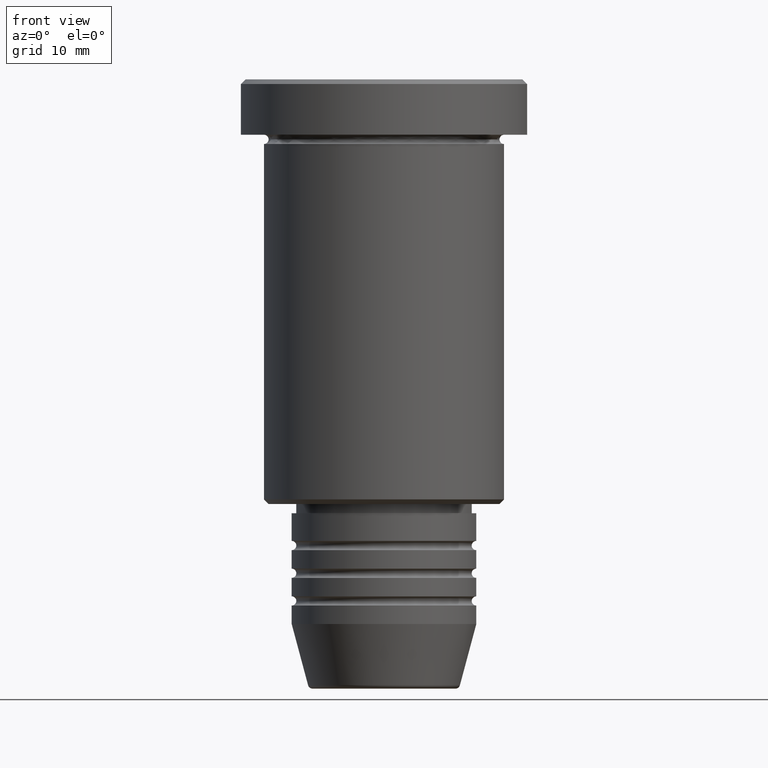
[diagram: clean part render]
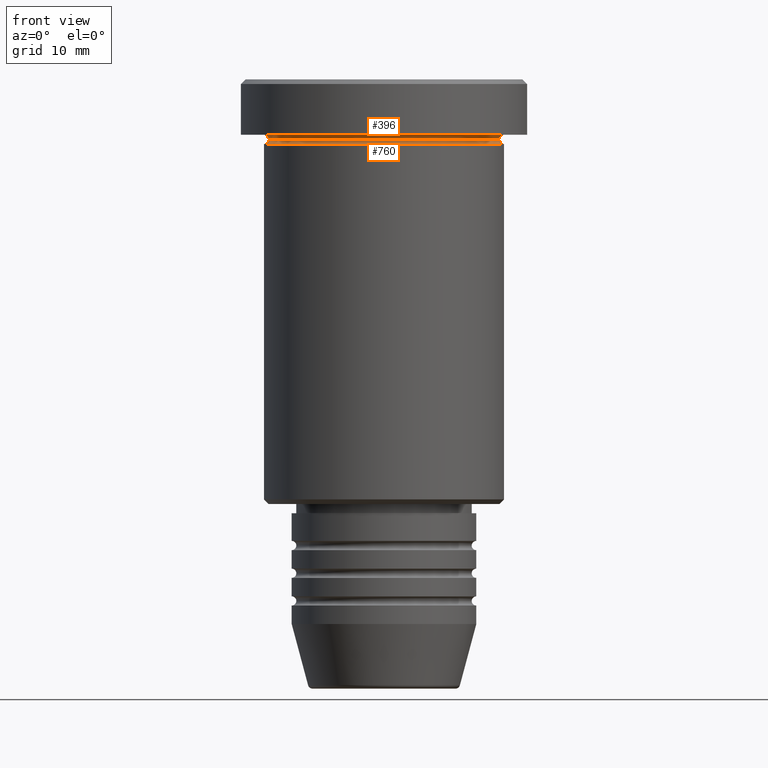
[diagram: same view with one multi-face feature highlighted, each face labeled with its STEP entity id]
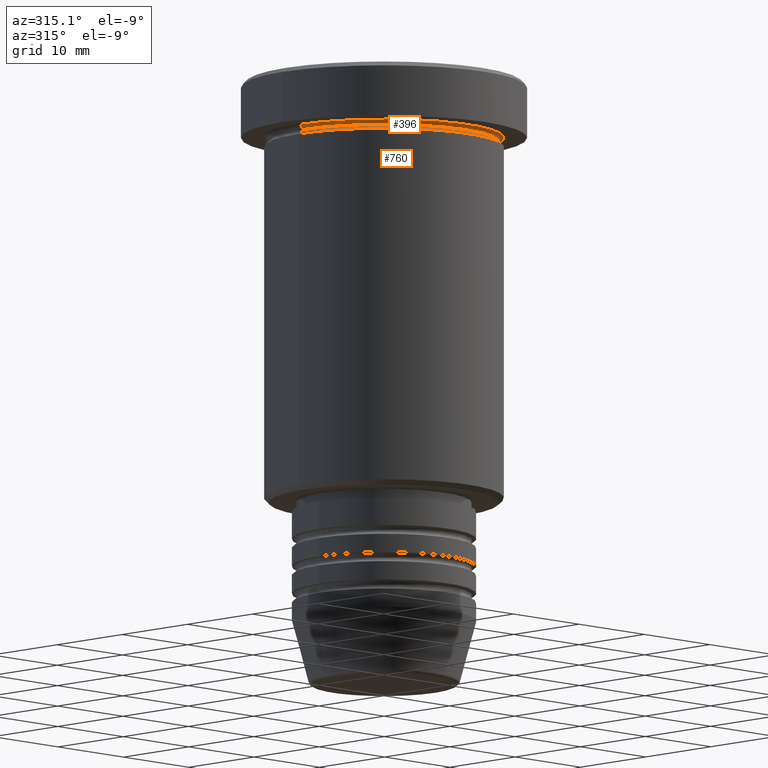
[diagram: same view with one multi-face feature highlighted, each face labeled with its STEP entity id]
A machine part, front view. The highlighted faces form ONE feature: a constant-radius fillet chain: 2 tangent blend faces with common blend radius 0.5 mm. The faces share edges in the B-rep.
A second angle (auxiliary view) of the same feature is appended — it is thin or edge-on in the first view.
Their STEP definitions:
[1] entity #760 (Torus):
#10 = CARTESIAN_POINT ( 'NONE',  ( 0.000000000000000000, 0.000000000000000000, -6.499999999999995559 ) ) ;
#22 = AXIS2_PLACEMENT_3D ( 'NONE', #10, #859, #595 ) ;
#33 = CARTESIAN_POINT ( 'NONE',  ( 0.000000000000000000, 0.000000000000000000, -6.499999999999995559 ) ) ;
#62 = CARTESIAN_POINT ( 'NONE',  ( 0.000000000000000000, 0.000000000000000000, -6.999999999999995559 ) ) ;
#70 = EDGE_CURVE ( 'NONE', #77, #699, #313, .T. ) ;
#77 = VERTEX_POINT ( 'NONE', #160 ) ;
#94 = CARTESIAN_POINT ( 'NONE',  ( -12.49999999999999822, 1.561424668912875308E-15, -6.499999999999995559 ) ) ;
#96 = CARTESIAN_POINT ( 'NONE',  ( 13.00000000000000000, 0.000000000000000000, -6.999999999999995559 ) ) ;
#160 = CARTESIAN_POINT ( 'NONE',  ( 12.49999999999999822, 0.000000000000000000, -6.499999999999995559 ) ) ;
#184 = CARTESIAN_POINT ( 'NONE',  ( 13.00000000000000000, 0.000000000000000000, -6.499999999999995559 ) ) ;
#187 = CARTESIAN_POINT ( 'NONE',  ( -13.00000000000000000, 1.592040838891559095E-15, -6.499999999999995559 ) ) ;
#195 = DIRECTION ( 'NONE',  ( 1.224646799147353207E-16, 1.000000000000000000, 0.000000000000000000 ) ) ;
#253 = EDGE_CURVE ( 'NONE', #275, #1094, #320, .T. ) ;
#275 = VERTEX_POINT ( 'NONE', #94 ) ;
#313 = CIRCLE ( 'NONE', #769, 0.5000000000000004441 ) ;
#320 = CIRCLE ( 'NONE', #762, 0.5000000000000004441 ) ;
#325 = EDGE_CURVE ( 'NONE', #1094, #699, #961, .T. ) ;
#342 = ORIENTED_EDGE ( 'NONE', *, *, #406, .F. ) ;
#382 = ORIENTED_EDGE ( 'NONE', *, *, #253, .T. ) ;
#401 = ORIENTED_EDGE ( 'NONE', *, *, #70, .F. ) ;
#406 = EDGE_CURVE ( 'NONE', #275, #77, #546, .T. ) ;
#413 = DIRECTION ( 'NONE',  ( -0.000000000000000000, -0.000000000000000000, 1.000000000000000000 ) ) ;
#508 = AXIS2_PLACEMENT_3D ( 'NONE', #33, #581, #664 ) ;
#546 = CIRCLE ( 'NONE', #22, 12.49999999999999822 ) ;
#581 = DIRECTION ( 'NONE',  ( -0.000000000000000000, -0.000000000000000000, 1.000000000000000000 ) ) ;
#595 = DIRECTION ( 'NONE',  ( 1.000000000000000000, 0.000000000000000000, 0.000000000000000000 ) ) ;
#642 = FACE_OUTER_BOUND ( 'NONE', #1018, .T. ) ;
#664 = DIRECTION ( 'NONE',  ( 1.000000000000000000, 0.000000000000000000, 0.000000000000000000 ) ) ;
#699 = VERTEX_POINT ( 'NONE', #96 ) ;
#760 = ADVANCED_FACE ( 'NONE', ( #642 ), #1091, .F. ) ;
#762 = AXIS2_PLACEMENT_3D ( 'NONE', #187, #195, #1135 ) ;
#769 = AXIS2_PLACEMENT_3D ( 'NONE', #184, #1116, #852 ) ;
#842 = AXIS2_PLACEMENT_3D ( 'NONE', #62, #413, #1082 ) ;
#852 = DIRECTION ( 'NONE',  ( 0.000000000000000000, 0.000000000000000000, -1.000000000000000000 ) ) ;
#859 = DIRECTION ( 'NONE',  ( -0.000000000000000000, -0.000000000000000000, 1.000000000000000000 ) ) ;
#951 = CARTESIAN_POINT ( 'NONE',  ( -13.00000000000000000, 1.592040838891559095E-15, -6.999999999999995559 ) ) ;
#961 = CIRCLE ( 'NONE', #842, 13.00000000000000000 ) ;
#1000 = ORIENTED_EDGE ( 'NONE', *, *, #325, .T. ) ;
#1018 = EDGE_LOOP ( 'NONE', ( #342, #382, #1000, #401 ) ) ;
#1082 = DIRECTION ( 'NONE',  ( 1.000000000000000000, 0.000000000000000000, 0.000000000000000000 ) ) ;
#1091 = TOROIDAL_SURFACE ( 'NONE', #508, 13.00000000000000000, 0.5000000000000000000 ) ;
#1094 = VERTEX_POINT ( 'NONE', #951 ) ;
#1116 = DIRECTION ( 'NONE',  ( 0.000000000000000000, -1.000000000000000000, 0.000000000000000000 ) ) ;
#1135 = DIRECTION ( 'NONE',  ( -1.000000000000000000, 1.224646799147353454E-16, 0.000000000000000000 ) ) ;
[2] entity #396 (Torus):
#1 = ORIENTED_EDGE ( 'NONE', *, *, #886, .F. ) ;
#10 = CARTESIAN_POINT ( 'NONE',  ( 0.000000000000000000, 0.000000000000000000, -6.499999999999995559 ) ) ;
#22 = AXIS2_PLACEMENT_3D ( 'NONE', #10, #859, #595 ) ;
#23 = AXIS2_PLACEMENT_3D ( 'NONE', #989, #504, #135 ) ;
#77 = VERTEX_POINT ( 'NONE', #160 ) ;
#82 = CARTESIAN_POINT ( 'NONE',  ( 13.00000000000000000, 1.592040838891559095E-15, -6.499999999999995559 ) ) ;
#94 = CARTESIAN_POINT ( 'NONE',  ( -12.49999999999999822, 1.561424668912875308E-15, -6.499999999999995559 ) ) ;
#106 = DIRECTION ( 'NONE',  ( -1.000000000000000000, 0.000000000000000000, 0.000000000000000000 ) ) ;
#114 = AXIS2_PLACEMENT_3D ( 'NONE', #1096, #240, #623 ) ;
#135 = DIRECTION ( 'NONE',  ( 0.000000000000000000, 0.000000000000000000, -1.000000000000000000 ) ) ;
#160 = CARTESIAN_POINT ( 'NONE',  ( 12.49999999999999822, 0.000000000000000000, -6.499999999999995559 ) ) ;
#240 = DIRECTION ( 'NONE',  ( -0.000000000000000000, -0.000000000000000000, 1.000000000000000000 ) ) ;
#248 = CARTESIAN_POINT ( 'NONE',  ( 0.000000000000000000, 0.000000000000000000, -6.499999999999995559 ) ) ;
#252 = ORIENTED_EDGE ( 'NONE', *, *, #406, .T. ) ;
#275 = VERTEX_POINT ( 'NONE', #94 ) ;
#285 = TOROIDAL_SURFACE ( 'NONE', #376, 13.00000000000000000, 0.5000000000000000000 ) ;
#376 = AXIS2_PLACEMENT_3D ( 'NONE', #248, #1174, #106 ) ;
#396 = ADVANCED_FACE ( 'NONE', ( #1025 ), #285, .F. ) ;
#406 = EDGE_CURVE ( 'NONE', #275, #77, #546, .T. ) ;
#435 = ORIENTED_EDGE ( 'NONE', *, *, #841, .T. ) ;
#444 = EDGE_LOOP ( 'NONE', ( #252, #435, #1, #611 ) ) ;
#504 = DIRECTION ( 'NONE',  ( -0.000000000000000000, -1.000000000000000000, -0.000000000000000000 ) ) ;
#541 = EDGE_CURVE ( 'NONE', #275, #977, #997, .T. ) ;
#546 = CIRCLE ( 'NONE', #22, 12.49999999999999822 ) ;
#559 = CARTESIAN_POINT ( 'NONE',  ( 13.00000000000000000, 1.592040838891559095E-15, -5.999999999999994671 ) ) ;
#595 = DIRECTION ( 'NONE',  ( 1.000000000000000000, 0.000000000000000000, 0.000000000000000000 ) ) ;
#611 = ORIENTED_EDGE ( 'NONE', *, *, #541, .F. ) ;
#612 = CIRCLE ( 'NONE', #114, 13.00000000000000000 ) ;
#623 = DIRECTION ( 'NONE',  ( -1.000000000000000000, 0.000000000000000000, 0.000000000000000000 ) ) ;
#640 = VERTEX_POINT ( 'NONE', #559 ) ;
#695 = CIRCLE ( 'NONE', #910, 0.5000000000000004441 ) ;
#726 = CARTESIAN_POINT ( 'NONE',  ( -13.00000000000000000, 0.000000000000000000, -5.999999999999994671 ) ) ;
#841 = EDGE_CURVE ( 'NONE', #77, #640, #695, .T. ) ;
#855 = DIRECTION ( 'NONE',  ( -1.224646799147353207E-16, 1.000000000000000000, 0.000000000000000000 ) ) ;
#859 = DIRECTION ( 'NONE',  ( -0.000000000000000000, -0.000000000000000000, 1.000000000000000000 ) ) ;
#886 = EDGE_CURVE ( 'NONE', #977, #640, #612, .T. ) ;
#910 = AXIS2_PLACEMENT_3D ( 'NONE', #82, #855, #1120 ) ;
#977 = VERTEX_POINT ( 'NONE', #726 ) ;
#989 = CARTESIAN_POINT ( 'NONE',  ( -13.00000000000000000, 0.000000000000000000, -6.499999999999995559 ) ) ;
#997 = CIRCLE ( 'NONE', #23, 0.5000000000000004441 ) ;
#1025 = FACE_OUTER_BOUND ( 'NONE', #444, .T. ) ;
#1096 = CARTESIAN_POINT ( 'NONE',  ( 0.000000000000000000, 0.000000000000000000, -5.999999999999995559 ) ) ;
#1120 = DIRECTION ( 'NONE',  ( -1.000000000000000000, -1.224646799147353454E-16, 0.000000000000000000 ) ) ;
#1174 = DIRECTION ( 'NONE',  ( 0.000000000000000000, 0.000000000000000000, -1.000000000000000000 ) ) ;